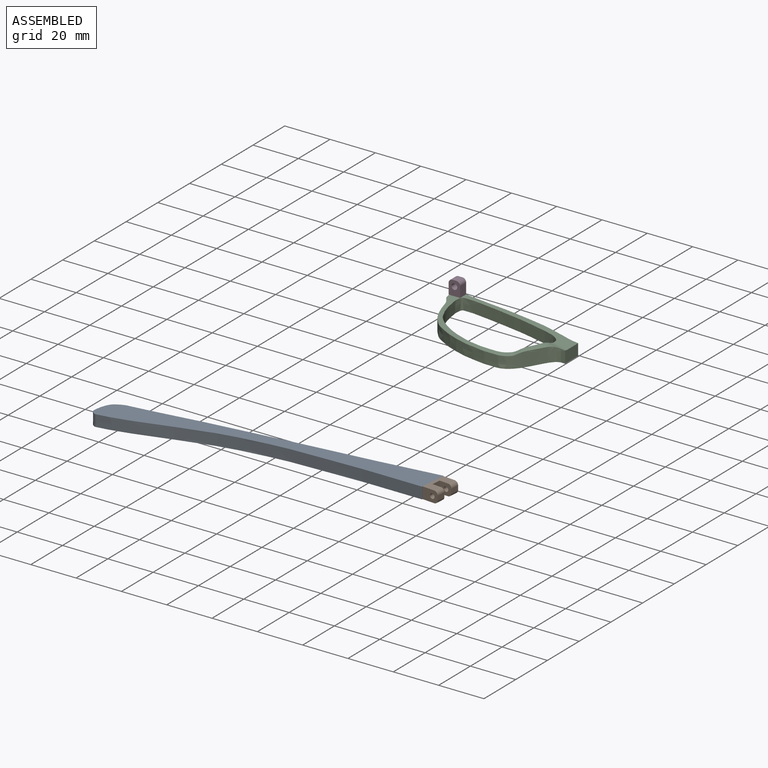
[diagram: assembled view]
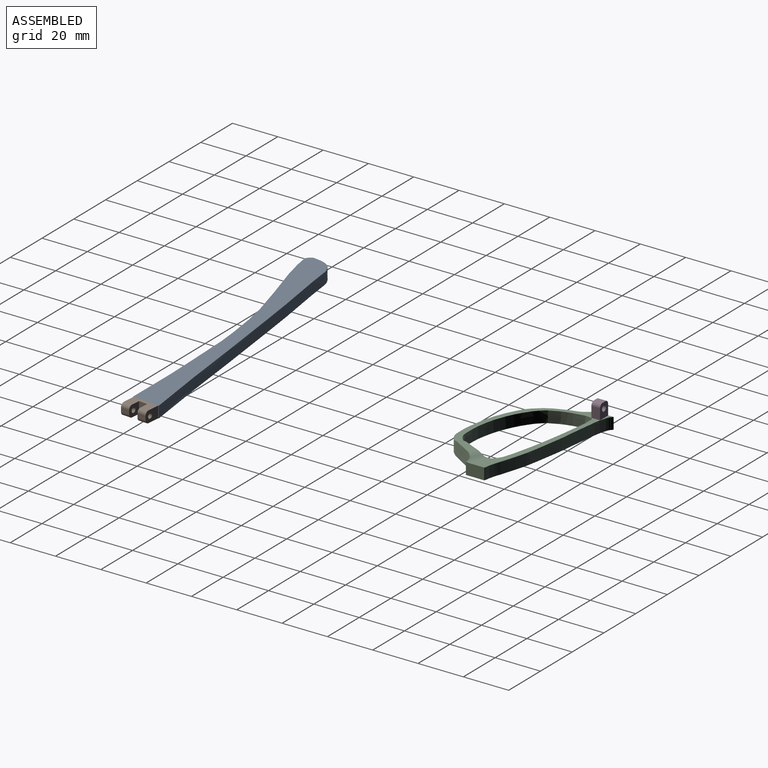
[diagram: assembled view, second angle]
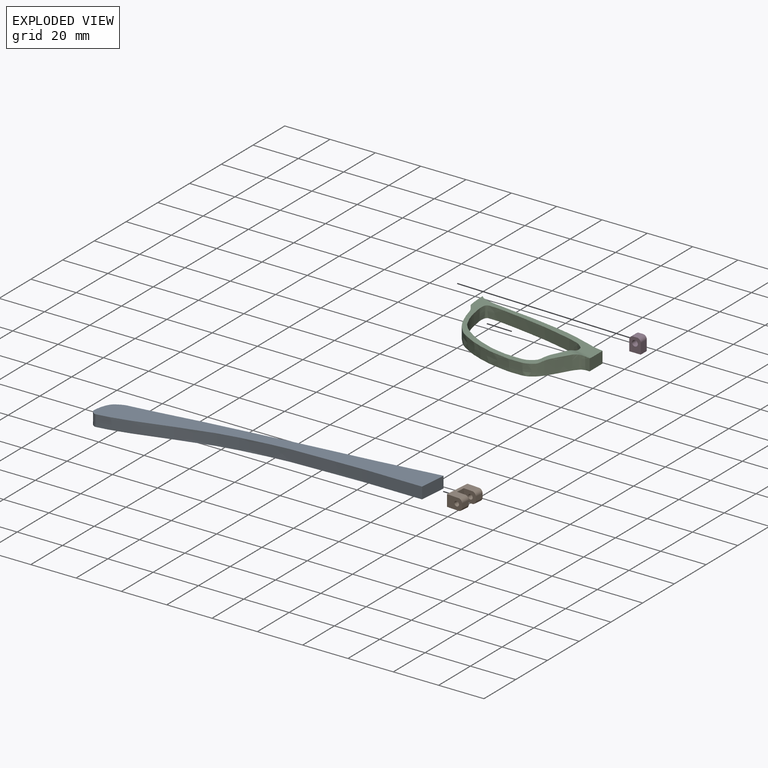
[diagram: exploded view]
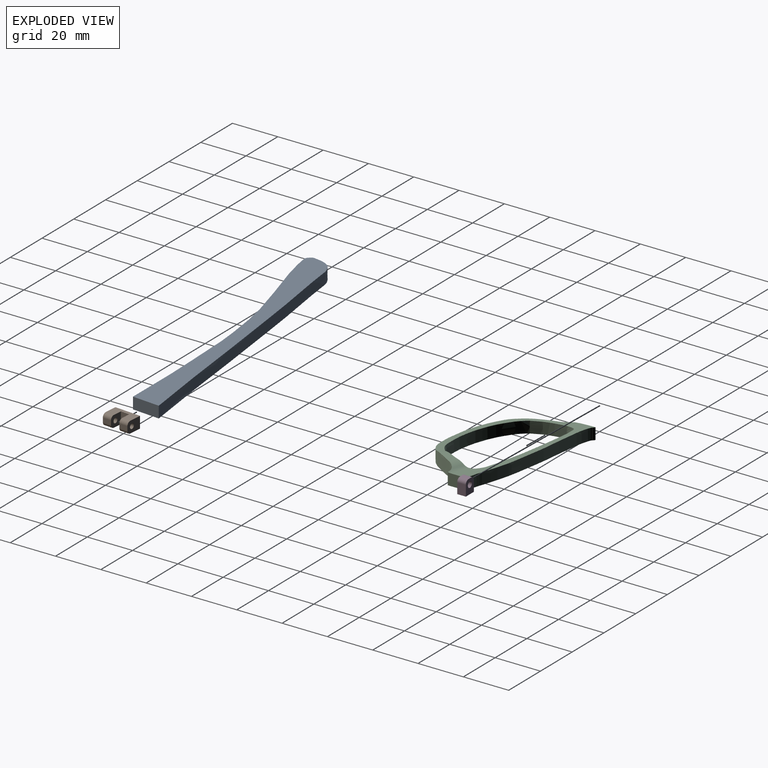
[diagram: exploded view, second angle]
ASSEMBLY  parts=4 mates=2
PART A: 5 faces, bbox 136x29.5x5.1 mm
  f0: plane 12.09x5.08mm, normal (1,-0.08,0), area 61.6mm2, adj f1,f2,f3,f4
  f1: extruded ~134.51x20.92mm, area 697.3mm2, adj f0,f2,f3,f4
  f2: extruded ~134.65x16.95mm, area 738.4mm2, adj f0,f1,f3,f4
  f3: plane 136x29.5mm, normal (0,0,1), area 1120mm2, adj f0,f1,f2
  f4: plane 136x29.5mm, normal (0,0,-1), area 1120mm2, adj f0,f1,f2
PART B: 17 faces, bbox 5.1x7.1x11.6 mm
  f0: plane 5.59x5.08mm, normal (0,0,-1), area 23.6mm2, adj f1,f2,f3,f4,f6,f7,f8
  f1: plane 11.56x5.46mm, normal (1,0,0), area 47.6mm2, adj f0,f2,f5,f8,f9,f11,f13,f16
  f2: cylinder r=1.65mm len=3.81mm, axis (0,0,-1), area 9.9mm2, adj f0,f1,f3,f5
  f3: plane 3.81x1.78mm, normal (0,1,0), area 6.8mm2, adj f0,f2,f4,f5
  f4: cylinder r=1.65mm len=3.81mm, axis (0,0,-1), area 9.9mm2, adj f0,f3,f5,f7
  f5: plane 7.11x5.08mm, normal (0,0,1), area 31.4mm2, adj f1,f2,f3,f4,f6,f7,f16
  f6: cylinder r=1.07mm len=3.81mm, axis (0,0,-1), area 25.5mm2, adj f0,f5
  f7: plane 11.56x5.46mm, normal (-1,0,0), area 47.6mm2, adj f0,f4,f5,f8,f9,f11,f12,f16
  f8: plane 5.08x3.94mm, normal (0,1,0), area 20mm2, adj f0,f1,f7,f9
  f9: plane 5.6x5.09mm, normal (0,0,1), area 23.3mm2, adj f1,f7,f8,f10,f12,f13,f14,f15
  f10: plane 3.81x1.78mm, normal (0,1,0), area 6.8mm2, adj f9,f11,f12,f13
  f11: plane 7.11x5.08mm, normal (0,0,-1), area 31.4mm2, adj f1,f7,f10,f12,f13,f14,f16
  f12: cylinder r=1.65mm len=3.81mm, axis (0,0,-1), area 9.9mm2, adj f7,f9,f10,f11
  f13: cylinder r=1.65mm len=3.81mm, axis (0,0,-1), area 9.9mm2, adj f1,f9,f10,f11
  f14: cylinder r=1.07mm len=3.81mm, axis (0,0,-1), area 25.5mm2, adj f9,f11,f15
  f15: plane 1.83x0.39mm, normal (0,-0.02,1), area 0.3mm2, adj f9,f14
  f16: plane 11.56x5.08mm, normal (0,-1,0), area 58.7mm2, adj f1,f5,f7,f11
PART C: 15 faces, bbox 62.9x38.6x6.4 mm
  f0: extruded ~50.32x29.86mm, area 334mm2, adj f5,f6,f7,f8,f12,f14
  f1: extruded ~49.58x30.48mm, area 597.3mm2, adj f6,f7,f9,f11,f12,f13,f14
  f2: extruded ~6.02x3.95mm, area 23.5mm2, adj f3,f7,f8,f11,f13
  f3: plane 8.15x5.26mm, normal (1,0,0), area 41.5mm2, adj f2,f4,f6,f7,f11
  f4: extruded ~61.43x12.72mm, area 320.3mm2, adj f3,f5,f6,f7
  f5: extruded ~8.58x5.08mm, area 49.9mm2, adj f0,f4,f6,f7
  f6: plane 62.46x38.56mm, normal (0,0,1), area 357mm2, adj f0,f1,f3,f4,f5,f11,f12
  f7: plane 62.46x38.56mm, normal (0,0,-1), area 437.5mm2, adj f0,f1,f2,f3,f4,f5,f8,f9
  f8: extruded ~11.37x7.27mm, area 84.9mm2, adj f0,f2,f7,f10,f13,f14
  f9: extruded ~9.66x6.35mm, area 66.9mm2, adj f1,f7,f10,f13,f14
  f10: plane 8.11x5.86mm, normal (0,0,1), area 22.5mm2, adj f8,f9,f13,f14
  f11: cylinder r=5.64mm len=8.78mm, axis (0.95,-0.31,0), area 18.1mm2, adj f1,f2,f3,f6,f13
  f12: cylinder r=5.64mm len=4.68mm, axis (0.47,-0.88,0), area 7.9mm2, adj f0,f1,f6,f14
  f13: cylinder r=9.44mm len=6.84mm, axis (0.95,-0.31,0), area 18mm2, adj f1,f2,f8,f9,f10,f11
  f14: cylinder r=9.44mm len=6.78mm, axis (0.47,-0.88,0), area 14.1mm2, adj f0,f1,f8,f9,f10,f12
PART D: 9 faces, bbox 5.1x6.4x3.8 mm
  f0: plane 3.81x1.78mm, normal (0,1,0), area 6.8mm2, adj f5,f6,f7,f8
  f1: plane 4.7x3.81mm, normal (-1,0,0), area 17.9mm2, adj f2,f5,f6,f7
  f2: plane 5.08x3.81mm, normal (0,-1,0), area 19.4mm2, adj f1,f4,f5,f6
  f3: cylinder r=1.27mm len=3.81mm, axis (0,0,-1), area 30.4mm2, adj f5,f6
  f4: plane 4.7x3.81mm, normal (1,0,0), area 17.9mm2, adj f2,f5,f6,f8
  f5: plane 6.35x5.08mm, normal (0,0,1), area 26mm2, adj f0,f1,f2,f3,f4,f7,f8
  f6: plane 6.35x5.08mm, normal (0,0,-1), area 26mm2, adj f0,f1,f2,f3,f4,f7,f8
  f7: cylinder r=1.65mm len=3.81mm, axis (0,0,-1), area 9.9mm2, adj f0,f1,f5,f6
  f8: cylinder r=1.65mm len=3.81mm, axis (0,0,-1), area 9.9mm2, adj f0,f4,f5,f6
PLACE A t=(-17.96,-38.44,15.7)mm
PLACE B rot(axis=(-0.59,-0.54,-0.59),122.8deg) t=(-79.97,-115.77,50.2)mm
PLACE C t=(-13.45,-42.32,13.69)mm
PLACE D rot(axis=(1,0,0),90deg) t=(-93.18,24.93,-12.86)mm
MATE fastened D.f2 <-> C.f6  axis (0,0,-1) through (-138.43,23.03,18.77)mm
MATE fastened B.f16 <-> A.f0  axis (-1,0.08,0) through (-49.06,-116.47,15.7)mm
